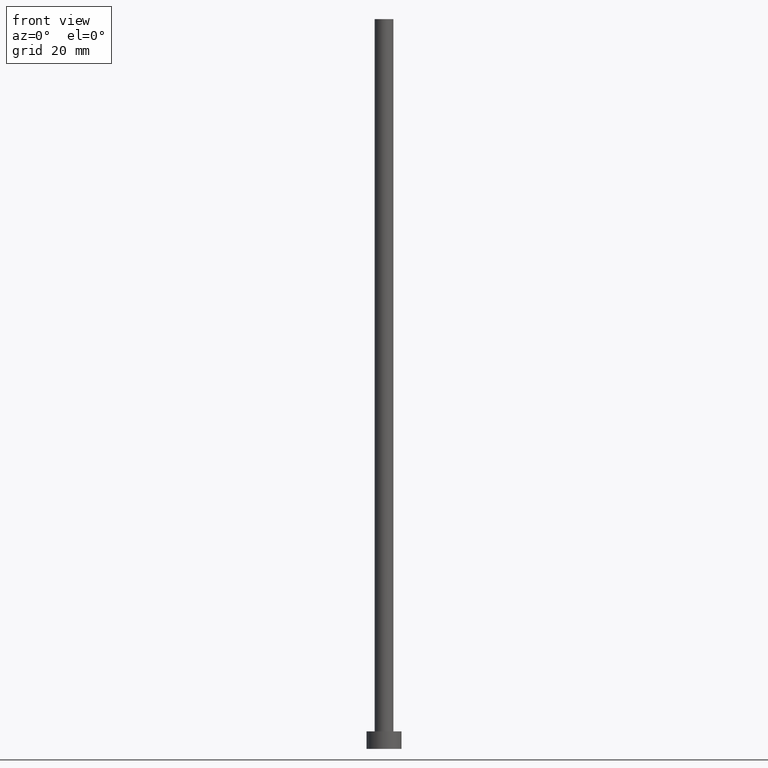
[diagram: clean part render]
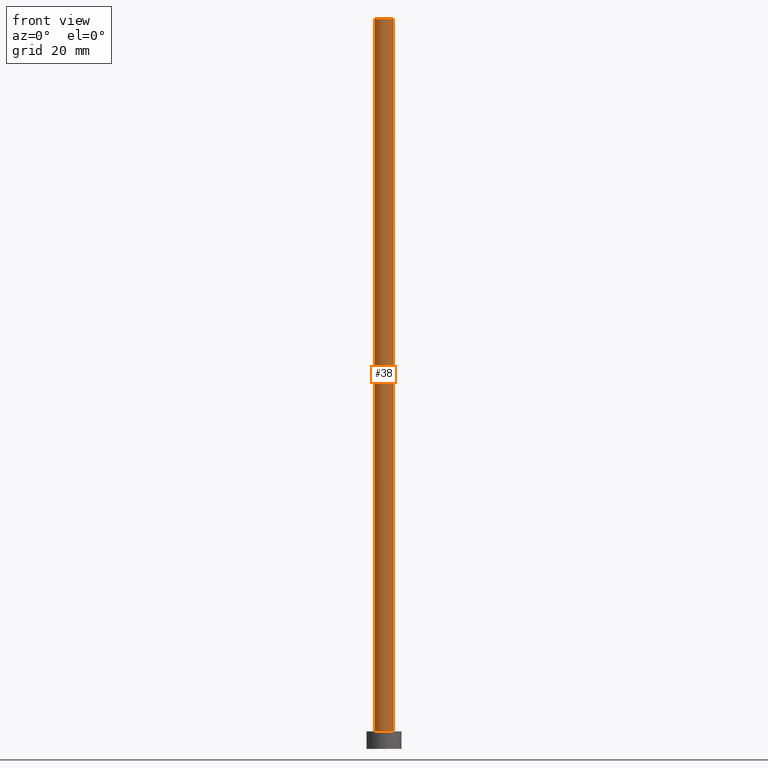
[diagram: same view with one face highlighted and labeled with its STEP entity id]
A machine part, front view. The second image highlights one B-rep face of the part: STEP entity #38.
In plain terms, the highlighted cylindrical surface (edge-blend (fillet) strip) has radius 1.6 mm, axis along (-0, -0, -1).
Its self-contained STEP definition (entity closure, byte-faithful):
#1 = VERTEX_POINT ( 'NONE', #106 ) ;
#6 = DIRECTION ( 'NONE',  ( -0.000000000000000000, -0.000000000000000000, -1.000000000000000000 ) ) ;
#25 = CARTESIAN_POINT ( 'NONE',  ( 1.600000000000000089, 1.959434878635764737E-16, 125.0000000000000000 ) ) ;
#38 = ADVANCED_FACE ( 'NONE', ( #190 ), #132, .T. ) ;
#52 = ORIENTED_EDGE ( 'NONE', *, *, #170, .F. ) ;
#56 = VECTOR ( 'NONE', #167, 1000.000000000000000 ) ;
#57 = ORIENTED_EDGE ( 'NONE', *, *, #180, .T. ) ;
#67 = AXIS2_PLACEMENT_3D ( 'NONE', #153, #6, #230 ) ;
#72 = CARTESIAN_POINT ( 'NONE',  ( -1.600000000000000089, 0.000000000000000000, 125.0000000000000000 ) ) ;
#79 = ORIENTED_EDGE ( 'NONE', *, *, #255, .T. ) ;
#87 = CARTESIAN_POINT ( 'NONE',  ( 1.600000000000000089, 1.959434878635764737E-16, 3.000000000000000000 ) ) ;
#106 = CARTESIAN_POINT ( 'NONE',  ( -1.600000000000000089, 0.000000000000000000, 3.000000000000000000 ) ) ;
#109 = DIRECTION ( 'NONE',  ( -0.000000000000000000, -0.000000000000000000, -1.000000000000000000 ) ) ;
#110 = CIRCLE ( 'NONE', #241, 1.600000000000000089 ) ;
#120 = AXIS2_PLACEMENT_3D ( 'NONE', #172, #159, #177 ) ;
#123 = VERTEX_POINT ( 'NONE', #87 ) ;
#125 = CARTESIAN_POINT ( 'NONE',  ( 1.600000000000000089, 1.959434878635764737E-16, 125.0000000000000000 ) ) ;
#132 = CYLINDRICAL_SURFACE ( 'NONE', #67, 1.600000000000000089 ) ;
#150 = CARTESIAN_POINT ( 'NONE',  ( -1.600000000000000089, 0.000000000000000000, 125.0000000000000000 ) ) ;
#153 = CARTESIAN_POINT ( 'NONE',  ( 0.000000000000000000, 0.000000000000000000, 125.0000000000000000 ) ) ;
#159 = DIRECTION ( 'NONE',  ( 0.000000000000000000, 0.000000000000000000, 1.000000000000000000 ) ) ;
#160 = VERTEX_POINT ( 'NONE', #125 ) ;
#162 = EDGE_LOOP ( 'NONE', ( #52, #237, #57, #79 ) ) ;
#166 = VECTOR ( 'NONE', #109, 1000.000000000000000 ) ;
#167 = DIRECTION ( 'NONE',  ( -0.000000000000000000, -0.000000000000000000, -1.000000000000000000 ) ) ;
#170 = EDGE_CURVE ( 'NONE', #160, #123, #176, .T. ) ;
#172 = CARTESIAN_POINT ( 'NONE',  ( 0.000000000000000000, 0.000000000000000000, 125.0000000000000000 ) ) ;
#173 = EDGE_CURVE ( 'NONE', #251, #160, #206, .T. ) ;
#176 = LINE ( 'NONE', #25, #166 ) ;
#177 = DIRECTION ( 'NONE',  ( 1.000000000000000000, 0.000000000000000000, 0.000000000000000000 ) ) ;
#180 = EDGE_CURVE ( 'NONE', #251, #1, #248, .T. ) ;
#190 = FACE_OUTER_BOUND ( 'NONE', #162, .T. ) ;
#206 = CIRCLE ( 'NONE', #120, 1.600000000000000089 ) ;
#211 = DIRECTION ( 'NONE',  ( 0.000000000000000000, 0.000000000000000000, 1.000000000000000000 ) ) ;
#217 = DIRECTION ( 'NONE',  ( 1.000000000000000000, 0.000000000000000000, 0.000000000000000000 ) ) ;
#227 = CARTESIAN_POINT ( 'NONE',  ( 0.000000000000000000, 0.000000000000000000, 3.000000000000000000 ) ) ;
#230 = DIRECTION ( 'NONE',  ( -1.000000000000000000, 0.000000000000000000, 0.000000000000000000 ) ) ;
#237 = ORIENTED_EDGE ( 'NONE', *, *, #173, .F. ) ;
#241 = AXIS2_PLACEMENT_3D ( 'NONE', #227, #211, #217 ) ;
#248 = LINE ( 'NONE', #72, #56 ) ;
#251 = VERTEX_POINT ( 'NONE', #150 ) ;
#255 = EDGE_CURVE ( 'NONE', #1, #123, #110, .T. ) ;